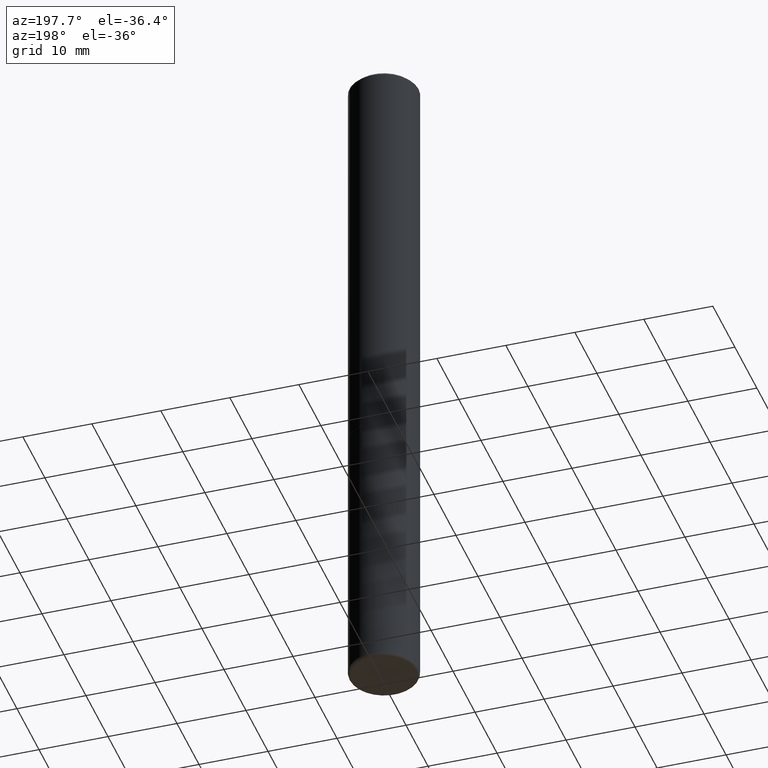
[diagram: clean part render]
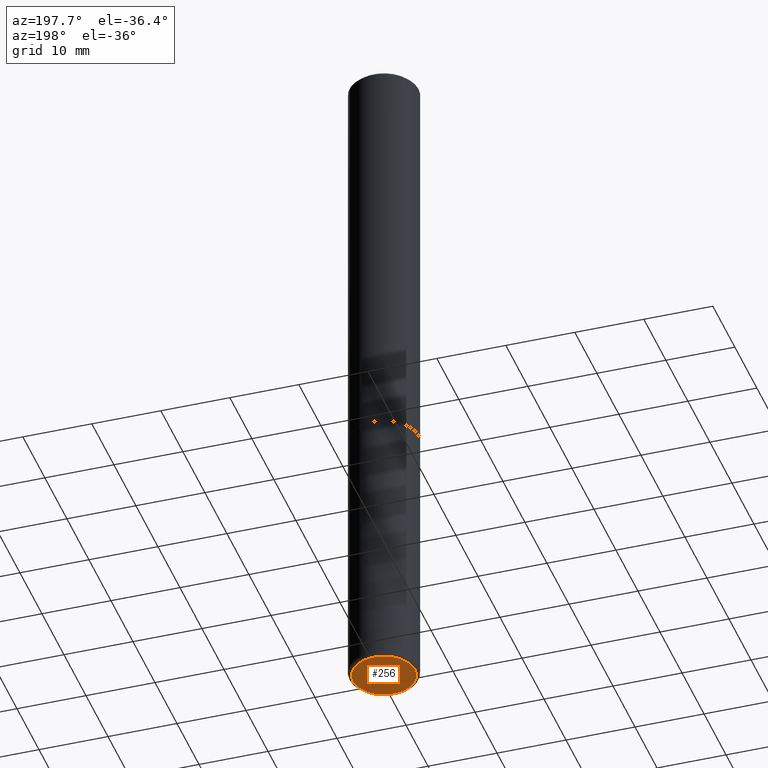
[diagram: same view with one face highlighted and labeled with its STEP entity id]
A machine part, auxiliary view. The second image highlights one B-rep face of the part: STEP entity #256.
In plain terms, the highlighted planar face has unit normal (0, -0, -1).
Its self-contained STEP definition (entity closure, byte-faithful):
#19 = DIRECTION ( 'NONE',  ( 1.000000000000000000, -6.982962677686270655E-15, 0.000000000000000000 ) ) ;
#23 = EDGE_CURVE ( 'NONE', #383, #181, #86, .T. ) ;
#47 = ORIENTED_EDGE ( 'NONE', *, *, #23, .F. ) ;
#75 = DIRECTION ( 'NONE',  ( -1.000000000000000000, 6.982962677686265922E-15, -4.876176775795935793E-29 ) ) ;
#79 = CARTESIAN_POINT ( 'NONE',  ( 9.627810689950883669E-29, -1.374596203102546341E-14, -3.937000000000000277 ) ) ;
#86 = CIRCLE ( 'NONE', #163, 0.1771500000000000574 ) ;
#91 = DIRECTION ( 'NONE',  ( -2.445468806185136597E-29, 3.491481338843145583E-15, 1.000000000000000000 ) ) ;
#92 = ORIENTED_EDGE ( 'NONE', *, *, #370, .F. ) ;
#109 = FACE_OUTER_BOUND ( 'NONE', #280, .T. ) ;
#134 = CARTESIAN_POINT ( 'NONE',  ( 9.627810689950883669E-29, -1.374596203102546341E-14, -3.937000000000000277 ) ) ;
#142 = CARTESIAN_POINT ( 'NONE',  ( 0.1771500000000000574, -1.498299386937758739E-14, -3.937000000000000277 ) ) ;
#163 = AXIS2_PLACEMENT_3D ( 'NONE', #227, #91, #329 ) ;
#181 = VERTEX_POINT ( 'NONE', #306 ) ;
#216 = DIRECTION ( 'NONE',  ( 2.438088387897960049E-29, -3.491481338843145188E-15, -1.000000000000000000 ) ) ;
#219 = CIRCLE ( 'NONE', #373, 0.1771500000000000574 ) ;
#227 = CARTESIAN_POINT ( 'NONE',  ( 9.627810689950883669E-29, -1.374596203102546341E-14, -3.937000000000000277 ) ) ;
#256 = ADVANCED_FACE ( 'NONE', ( #109 ), #371, .T. ) ;
#280 = EDGE_LOOP ( 'NONE', ( #47, #92 ) ) ;
#306 = CARTESIAN_POINT ( 'NONE',  ( -0.1771500000000000574, -1.238285602396647324E-14, -3.937000000000000277 ) ) ;
#329 = DIRECTION ( 'NONE',  ( 1.000000000000000000, -6.982962677686270655E-15, 0.000000000000000000 ) ) ;
#370 = EDGE_CURVE ( 'NONE', #181, #383, #219, .T. ) ;
#371 = PLANE ( 'NONE',  #402 ) ;
#373 = AXIS2_PLACEMENT_3D ( 'NONE', #134, #391, #19 ) ;
#383 = VERTEX_POINT ( 'NONE', #142 ) ;
#391 = DIRECTION ( 'NONE',  ( -2.445468806185136597E-29, 3.491481338843145583E-15, 1.000000000000000000 ) ) ;
#402 = AXIS2_PLACEMENT_3D ( 'NONE', #79, #216, #75 ) ;